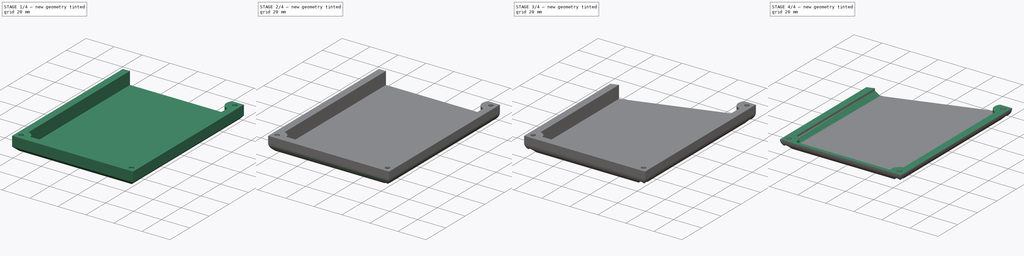
[diagram: build sequence overview — one tinted view per stage of 4, left to right]
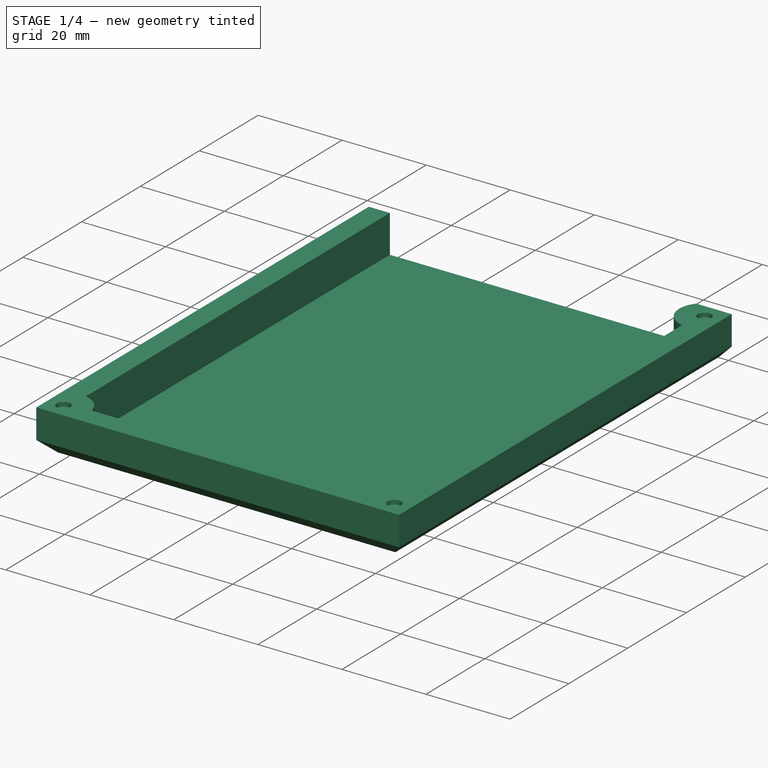
[diagram: stage 1 of 4 — iso view after this stage's code; geometry added in this stage tinted green]
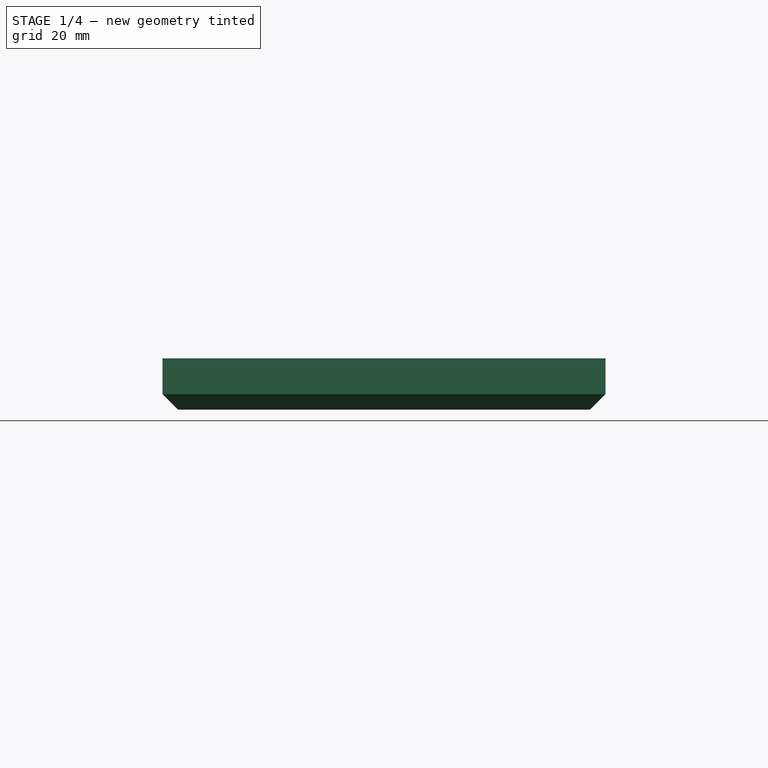
[diagram: stage 1 of 4 — front view after this stage's code; geometry added in this stage tinted green]
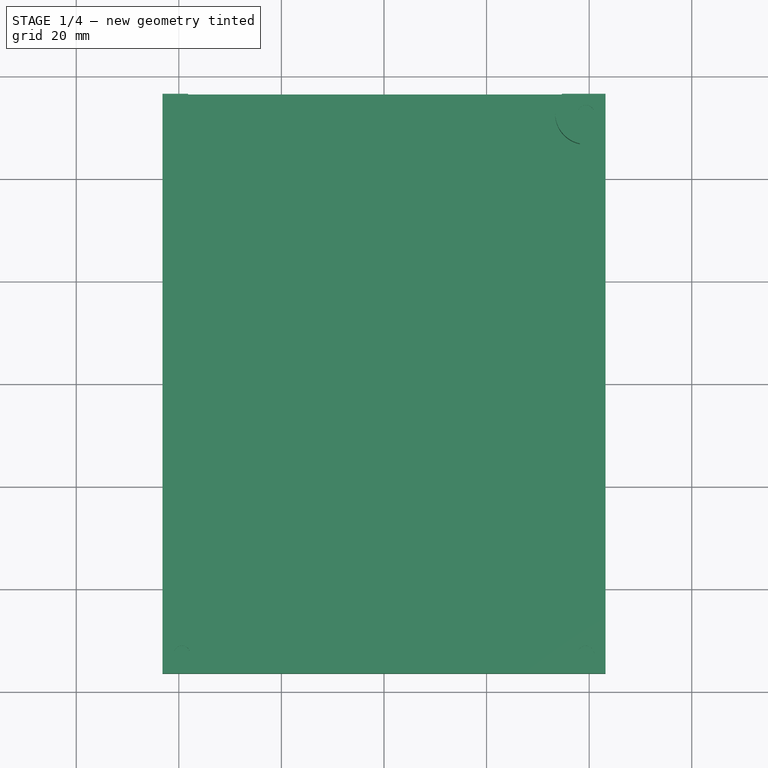
[diagram: stage 1 of 4 — top view after this stage's code; geometry added in this stage tinted green]
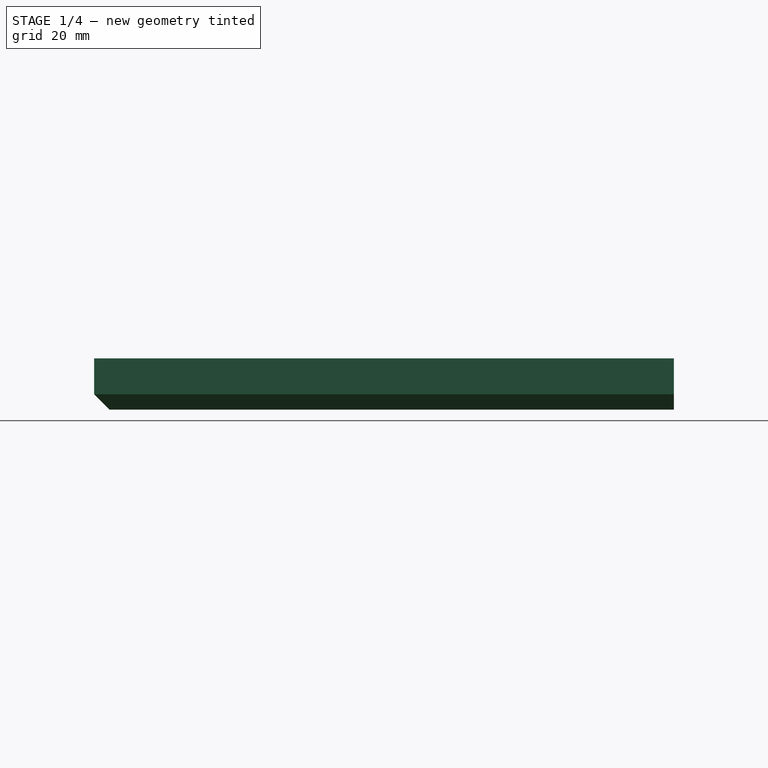
[diagram: stage 1 of 4 — right view after this stage's code; geometry added in this stage tinted green]
FCSTD DOCUMENT  (FreeCAD 0.18.4R)
Label: cover
License: All rights reserved
LicenseURL: http://en.wikipedia.org/wiki/All_rights_reserved
objects: PartDesign::Pocket×9, Sketcher::SketchObject×5, PartDesign::Chamfer×3, PartDesign::Pad×1, PartDesign::Fillet×1, PartDesign::Body×1
note: 30 computed .brp shape members not serialized (recipe doc carries the construction recipe); baked Part::Feature solids carry a one-line shape summary decoded from their .brp

FEATURE [Sketcher::SketchObject] Sketch
  MapMode = 5
  Support = -> [XY_Plane]
  sketch-geometry (4):
    g0: LineSegment StartX=-43.18 StartY=56.515 StartZ=0 EndX=43.18 EndY=56.515 EndZ=0
    g1: LineSegment StartX=43.18 StartY=56.515 StartZ=0 EndX=43.18 EndY=-56.515 EndZ=0
    g2: LineSegment StartX=43.18 StartY=-56.515 StartZ=0 EndX=-43.18 EndY=-56.515 EndZ=0
    g3: LineSegment StartX=-43.18 StartY=-56.515 StartZ=0 EndX=-43.18 EndY=56.515 EndZ=0
  constraints (10):
    c: Coincident(g0,g1)
    c: Coincident(g1,g2)
    c: Coincident(g2,g3)
    c: Coincident(g3,g0)
    c: Horizontal(g0)
    c: Vertical(g3)
    c: Symmetric(g1,g2,g-2)
    c: Symmetric(g1,g0,g-1)
    c: DistanceX(g2,g2) = 86.36
    c: DistanceY(g1,g1) = 113.03
FEATURE [PartDesign::Pad] Pad
  Length = 10
  Length2 = 100
  Profile = -> Sketch
  Type = 0
FEATURE [Sketcher::SketchObject] Sketch001
  MapMode = 5
  Placement = pos=(0,0,10) rot=(0,0,1;0rad)
  Support = -> [Pad]
  sketch-geometry (5):
    g0: Circle CenterX=-39.37 CenterY=-52.705 CenterZ=0 NormalX=0 NormalY=0 NormalZ=1 AngleXU=0 Radius=1.6
    g1: Circle CenterX=39.37 CenterY=-52.705 CenterZ=0 NormalX=0 NormalY=0 NormalZ=1 AngleXU=0 Radius=1.6
    g2: Circle CenterX=39.37 CenterY=52.705 CenterZ=0 NormalX=0 NormalY=0 NormalZ=1 AngleXU=0 Radius=1.6
    g3: LineSegment [constr] StartX=-39.37 StartY=-52.705 StartZ=0 EndX=39.37 EndY=-52.705 EndZ=0
    g4: LineSegment [constr] StartX=39.37 StartY=-52.705 StartZ=0 EndX=39.37 EndY=52.705 EndZ=0
  constraints (11):
    c: Equal(g2,g1)
    c: Equal(g1,g0)
    c: Radius(g2) = 1.6
    c: Coincident(g3,g0)
    c: Coincident(g3,g1)
    c: Coincident(g4,g1)
    c: Coincident(g4,g2)
    c: Symmetric(g1,g0,g-2)
    c: DistanceX(g3,g3) = 78.74
    c: Symmetric(g1,g2,g-1)
    c: DistanceY(g4,g4) = 105.41
FEATURE [PartDesign::Pocket] Pocket
  BaseFeature = -> Pad
  Length = 1
  Length2 = 100
  Profile = -> Sketch001
  Type = 0
FEATURE [Sketcher::SketchObject] Sketch002
  ExternalGeometry = -> [Pocket]
  MapMode = 5
  Placement = pos=(0,0,10) rot=(0,0,1;0rad)
  Support = -> [Pocket]
  sketch-geometry (7):
    g0: LineSegment StartX=-38.18 StartY=56.515 StartZ=0 EndX=34.7349 EndY=56.515 EndZ=0
    g1: LineSegment StartX=-38.18 StartY=-46.8242 StartZ=0 EndX=-38.18 EndY=56.515 EndZ=0
    g2: ArcOfCircle CenterX=-39.37 CenterY=-52.705 CenterZ=0 NormalX=0 NormalY=0 NormalZ=1 AngleXU=0 Radius=6 StartAngle=0.199657 EndAngle=1.37114
    g3: ArcOfCircle CenterX=39.37 CenterY=-52.705 CenterZ=0 NormalX=0 NormalY=0 NormalZ=1 AngleXU=0 Radius=6 StartAngle=1.77045 EndAngle=2.94194
    g4: ArcOfCircle CenterX=39.37 CenterY=52.705 CenterZ=0 NormalX=0 NormalY=0 NormalZ=1 AngleXU=0 Radius=6 StartAngle=2.45358 EndAngle=4.51273
    g5: LineSegment StartX=-33.4892 StartY=-51.515 StartZ=0 EndX=33.4892 EndY=-51.515 EndZ=0
    g6: LineSegment StartX=38.18 StartY=-46.8242 StartZ=0 EndX=38.18 EndY=46.8242 EndZ=0
  constraints (20):
    c: Coincident(g1,g0)
    c: Vertical(g1)
    c: PointOnObject(g0,g-3)
    c: Coincident(g2,g-6)
    c: Coincident(g3,g-5)
    c: Coincident(g4,g-4)
    c: Coincident(g4,g0)
    c: Equal(g4,g3)
    c: Coincident(g1,g2)
    c: Coincident(g5,g2)
    c: Coincident(g5,g3)
    c: Coincident(g6,g3)
    c: Coincident(g6,g4)
    c: Vertical(g6)
    c: DistanceX(g-3,g0) = 5
    c: DistanceY(g-7,g2) = 5
    c: Symmetric(g3,g2,g-2)
    c: Symmetric(g3,g1,g-2)
    c: Horizontal(g0)
    c: Radius(g3) = 6
FEATURE [PartDesign::Pocket] Pocket001
  BaseFeature = -> Pocket
  Length = 9
  Length2 = 100
  Profile = -> Sketch002
  Type = 0
FEATURE [PartDesign::Chamfer] Chamfer
  Base = -> Pocket001 [Edge9,Edge10,Edge11]
  BaseFeature = -> Pocket001
  Size = 3
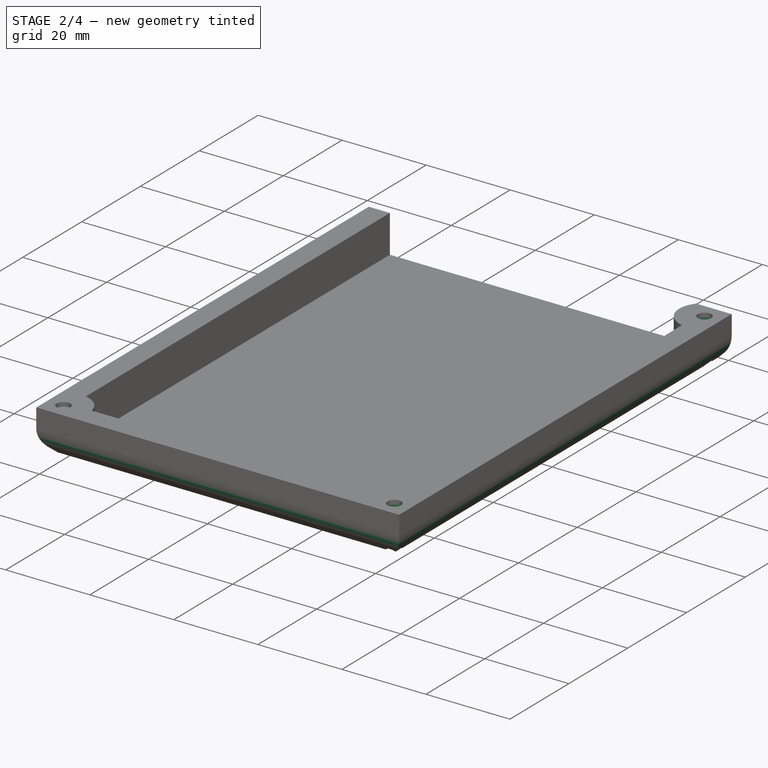
[diagram: stage 2 of 4 — iso view after this stage's code; geometry added in this stage tinted green]
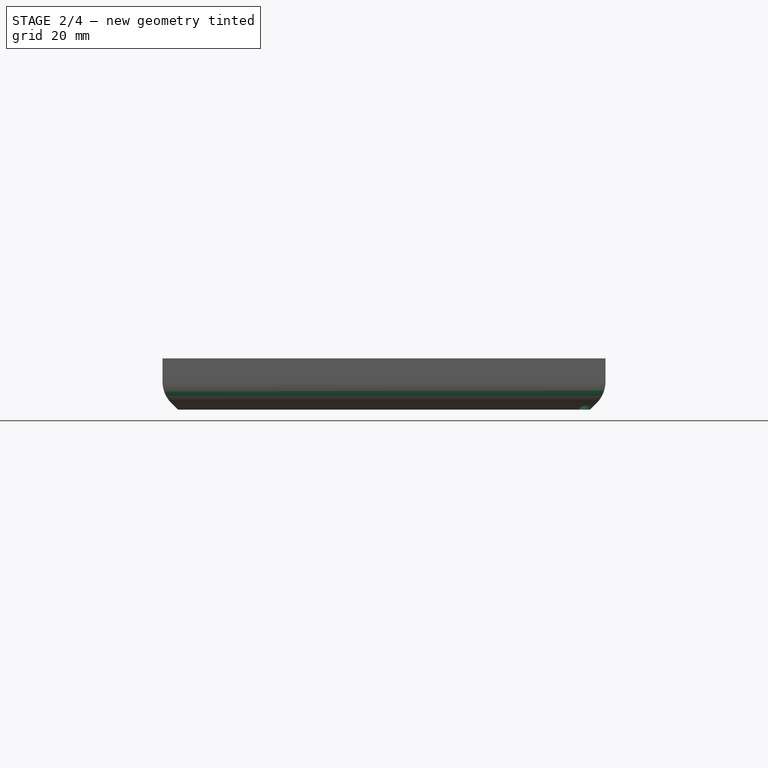
[diagram: stage 2 of 4 — front view after this stage's code; geometry added in this stage tinted green]
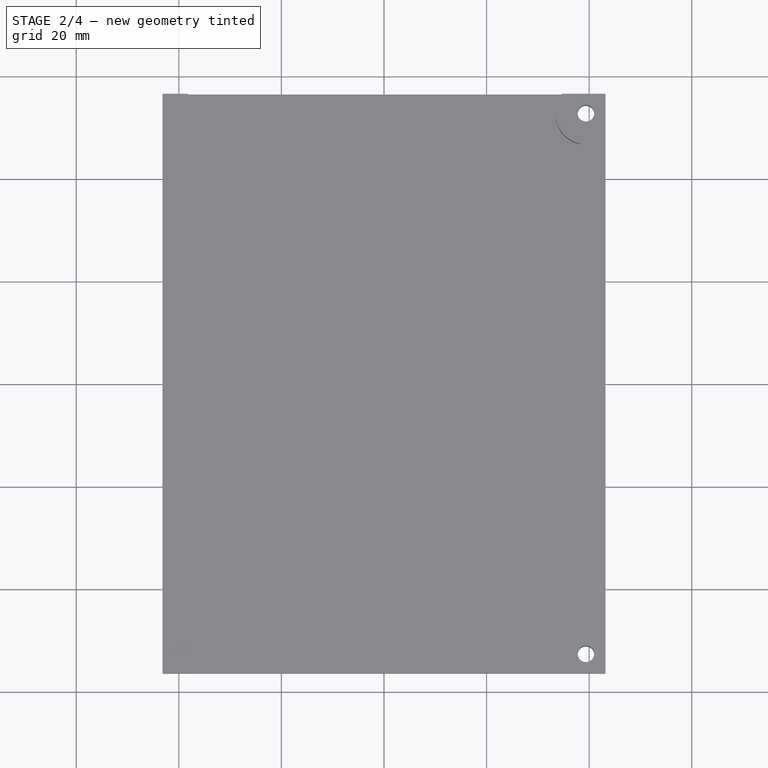
[diagram: stage 2 of 4 — top view after this stage's code; geometry added in this stage tinted green]
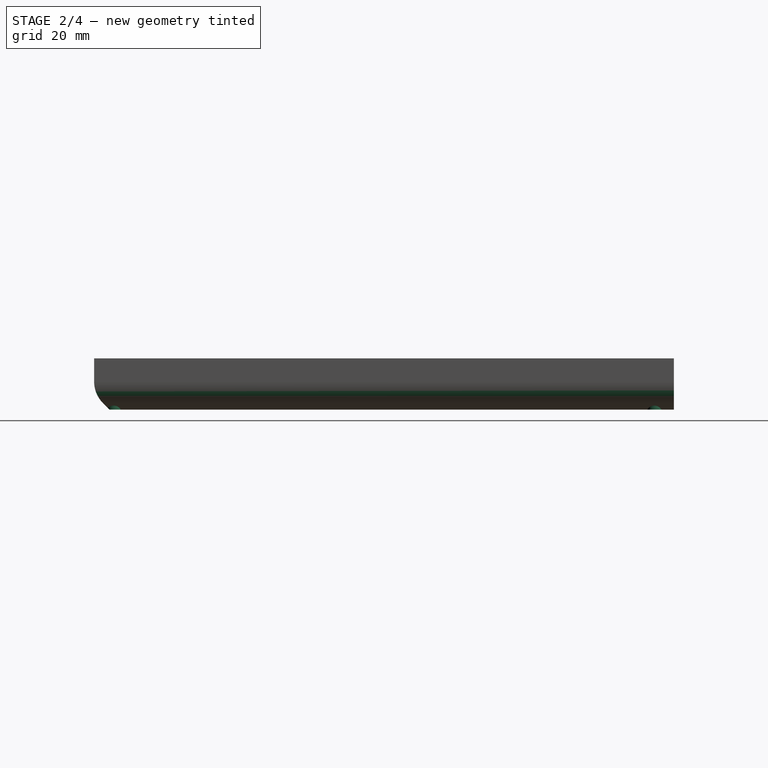
[diagram: stage 2 of 4 — right view after this stage's code; geometry added in this stage tinted green]
FEATURE [PartDesign::Fillet] Fillet
  Base = -> Chamfer [Edge16,Edge40,Edge15]
  BaseFeature = -> Chamfer
  Radius = 6
FEATURE [PartDesign::Pocket] Pocket002
  BaseFeature = -> Fillet
  Length = 5
  Length2 = 100
  Profile = -> Fillet [Face23]
  Type = 1
FEATURE [PartDesign::Pocket] Pocket003
  BaseFeature = -> Pocket002
  Length = 5
  Length2 = 100
  Profile = -> Pocket002 [Face25]
  Type = 1
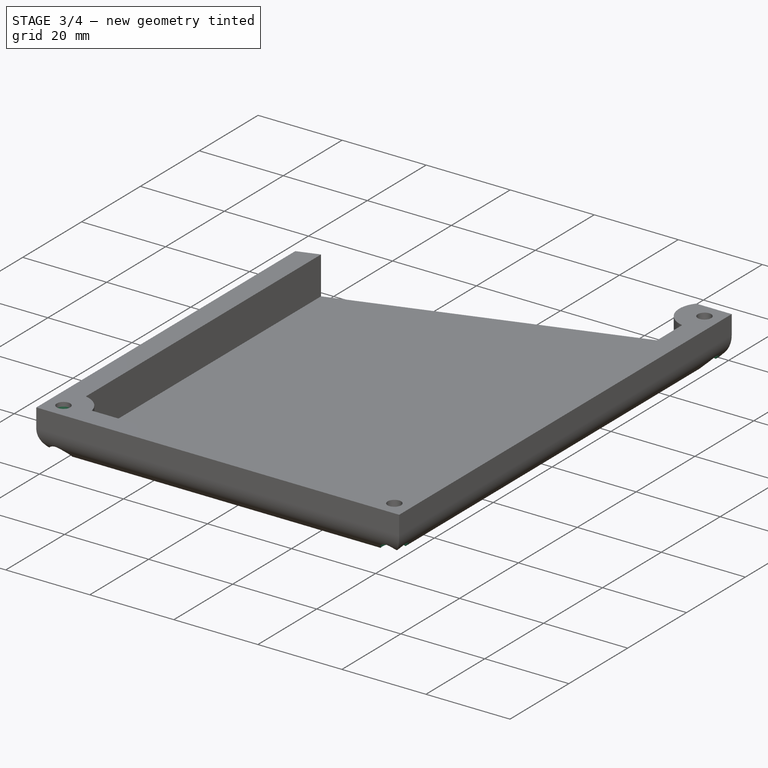
[diagram: stage 3 of 4 — iso view after this stage's code; geometry added in this stage tinted green]
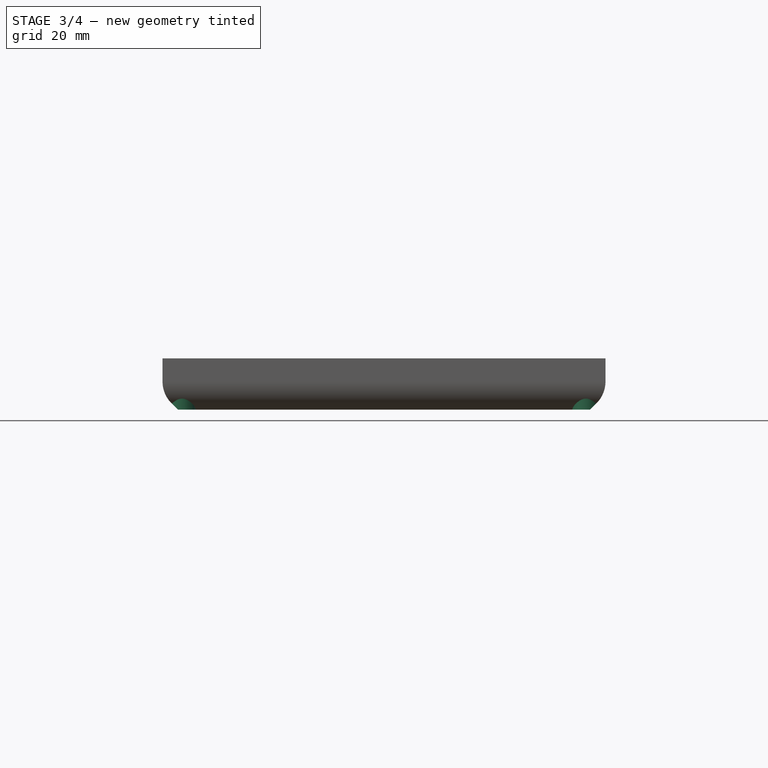
[diagram: stage 3 of 4 — front view after this stage's code; geometry added in this stage tinted green]
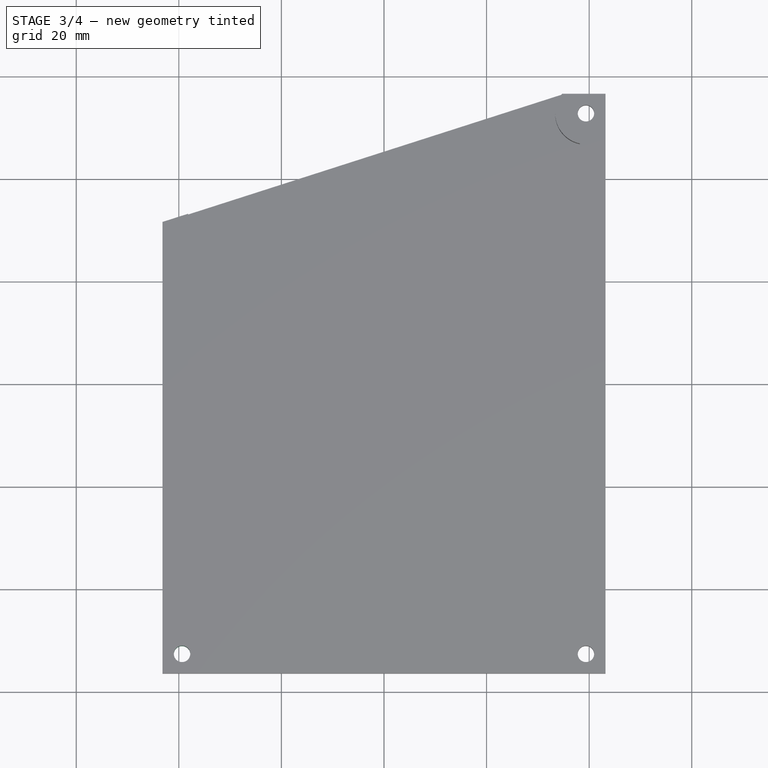
[diagram: stage 3 of 4 — top view after this stage's code; geometry added in this stage tinted green]
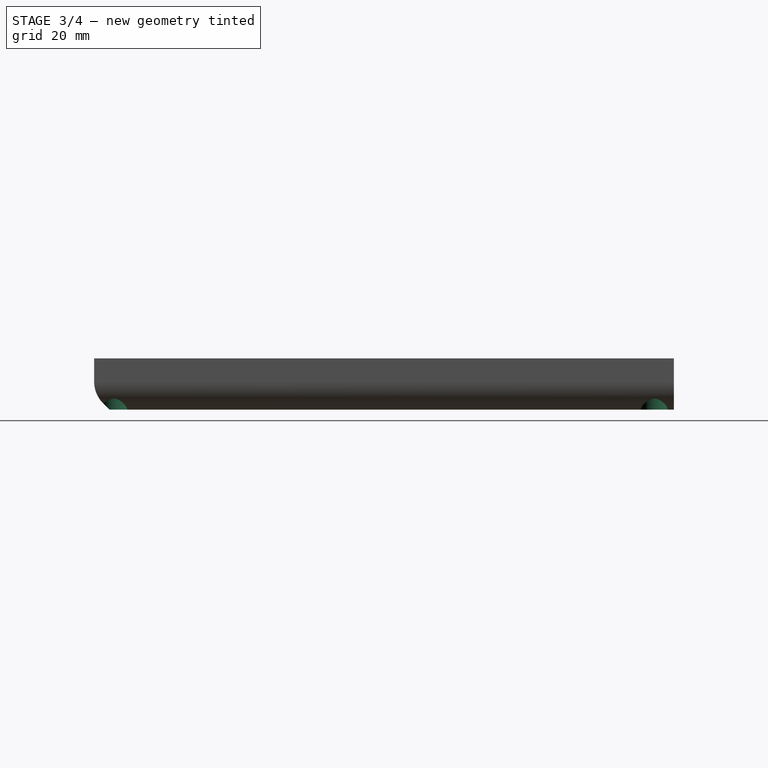
[diagram: stage 3 of 4 — right view after this stage's code; geometry added in this stage tinted green]
FEATURE [Sketcher::SketchObject] Sketch003
  MapMode = 5
  Placement = pos=(0,0,0) rot=(1,0,0;3.14159rad)
  sketch-geometry (3):
    g0: Circle CenterX=-39.37 CenterY=52.705 CenterZ=0 NormalX=0 NormalY=0 NormalZ=1 AngleXU=0 Radius=2.8
    g1: Circle CenterX=39.37 CenterY=52.705 CenterZ=0 NormalX=0 NormalY=0 NormalZ=1 AngleXU=0 Radius=2.8
    g2: Circle CenterX=39.37 CenterY=-52.705 CenterZ=0 NormalX=0 NormalY=0 NormalZ=1 AngleXU=0 Radius=2.8
  constraints (3):
    c: Equal(g2,g1)
    c: Equal(g1,g0)
    c: Radius(g1) = 2.8
FEATURE [PartDesign::Pocket] Pocket005
  BaseFeature = -> Pocket003
  Length = 4
  Length2 = 100
  Profile = -> Sketch003
  Type = 0
FEATURE [Sketcher::SketchObject] Sketch004
  ExternalGeometry = -> [Pocket005]
  MapMode = 5
  Placement = pos=(0,0,0) rot=(1,0,0;3.14159rad)
  Support = -> [Pocket005]
  sketch-geometry (5):
    g0: LineSegment StartX=34.7349 StartY=-56.515 StartZ=0 EndX=-43.18 EndY=-31.515 EndZ=0
    g1: LineSegment StartX=-43.18 StartY=-31.515 StartZ=0 EndX=-74.9579 EndY=-45.4531 EndZ=0
    g2: LineSegment StartX=-74.9579 StartY=-45.4531 StartZ=0 EndX=-56.1523 EndY=-90.8231 EndZ=0
    g3: LineSegment StartX=-56.1523 StartY=-90.8231 StartZ=0 EndX=38.8765 EndY=-98.3853 EndZ=0
    g4: LineSegment StartX=38.8765 StartY=-98.3853 StartZ=0 EndX=34.7349 EndY=-56.515 EndZ=0
  constraints (8):
    c: Coincident(g-3,g0)
    c: PointOnObject(g0,g-4)
    c: Coincident(g0,g1)
    c: Coincident(g1,g2)
    c: Coincident(g2,g3)
    c: Coincident(g3,g4)
    c: Coincident(g4,g0)
    c: DistanceY(g0,g0) = 25
FEATURE [PartDesign::Pocket] Pocket006
  BaseFeature = -> Pocket005
  Length = 5
  Length2 = 100
  Profile = -> Sketch004
  Type = 1
FEATURE [PartDesign::Pocket] Pocket007
  BaseFeature = -> Pocket006
  Length = 5
  Length2 = 100
  Profile = -> Pocket006 [Face37]
  Type = 1
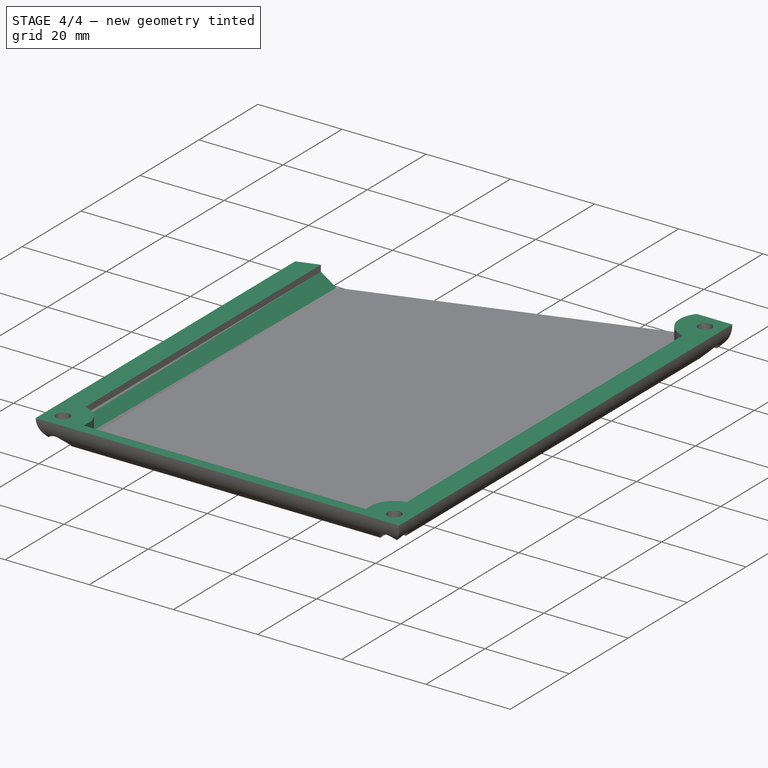
[diagram: stage 4 of 4 — iso view after this stage's code; geometry added in this stage tinted green]
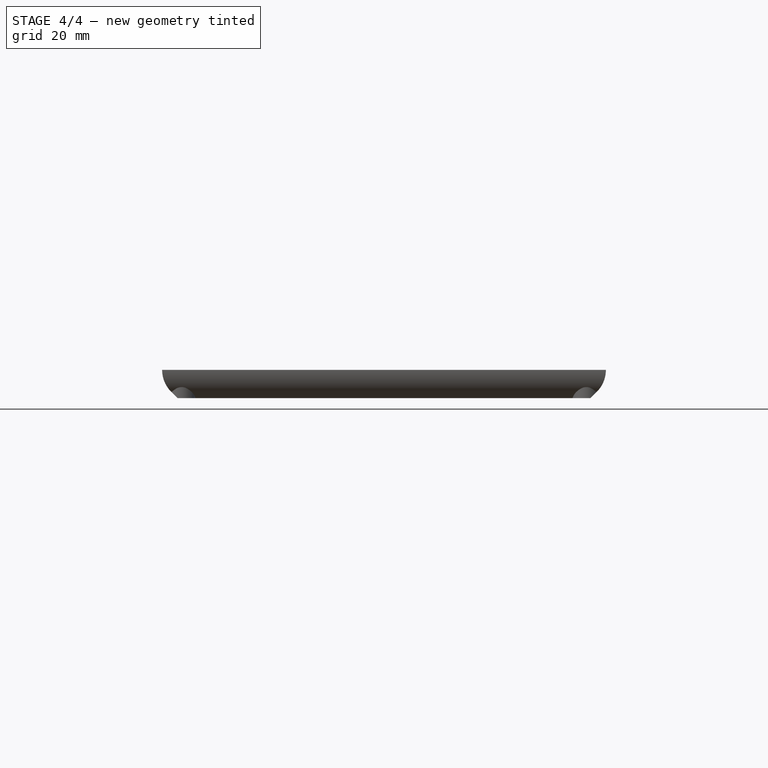
[diagram: stage 4 of 4 — front view after this stage's code; geometry added in this stage tinted green]
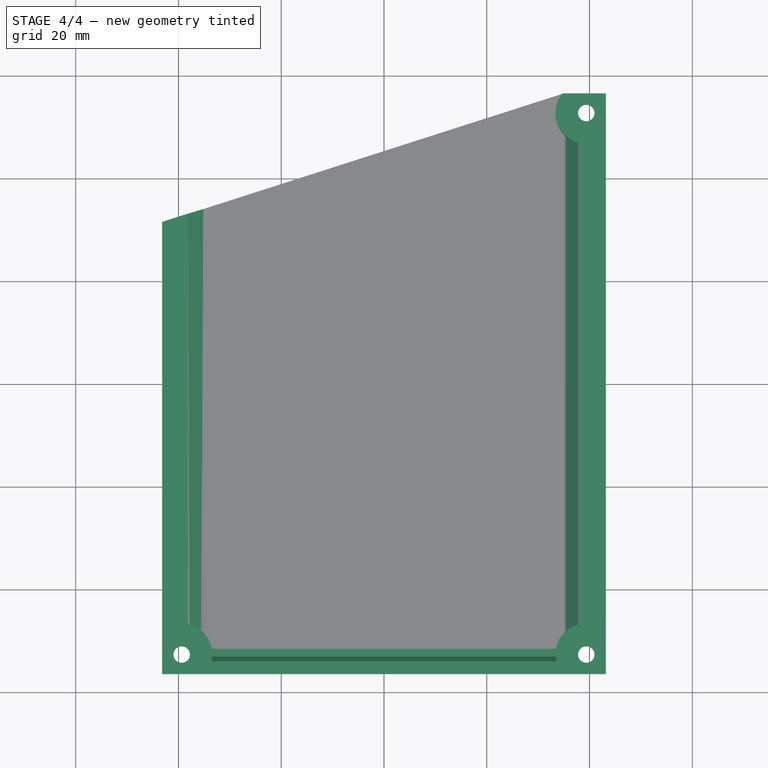
[diagram: stage 4 of 4 — top view after this stage's code; geometry added in this stage tinted green]
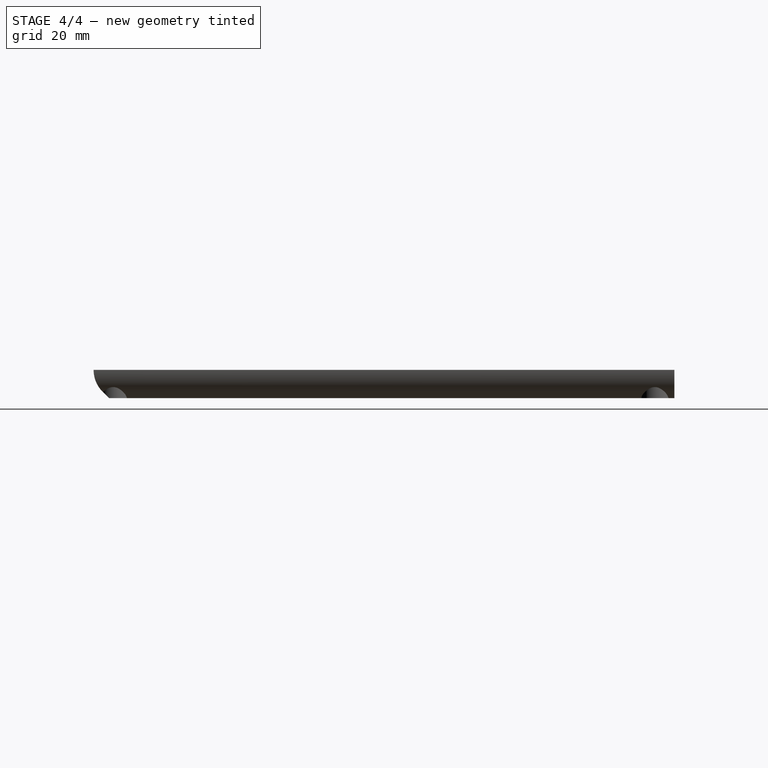
[diagram: stage 4 of 4 — right view after this stage's code; geometry added in this stage tinted green]
FEATURE [PartDesign::Pocket] Pocket008
  BaseFeature = -> Pocket007
  Length = 4.5
  Length2 = 100
  Profile = -> Pocket007 [Face6]
  Type = 0
FEATURE [PartDesign::Chamfer] Chamfer001
  Base = -> Pocket008 [Edge82,Edge74]
  BaseFeature = -> Pocket008
  Size = 3
FEATURE [PartDesign::Pocket] Pocket009
  BaseFeature = -> Chamfer001
  Length = 2.5
  Length2 = 100
  Profile = -> Chamfer001 [Face10]
  Type = 0
FEATURE [PartDesign::Chamfer] Chamfer002
  Base = -> Pocket009 [Edge40]
  BaseFeature = -> Pocket009
  Size = 1
FEATURE [PartDesign::Body] Body
  Group = -> [Sketch,Pad,Sketch001,Pocket,Sketch002,Pocket001,Chamfer,Fillet,Pocket002,Pocket003,Sketch003,Pocket005,Sketch004,Pocket006,Pocket007,Pocket008,Chamfer001,Pocket009,Chamfer002]
  Origin = -> Origin
  Tip = -> Chamfer002
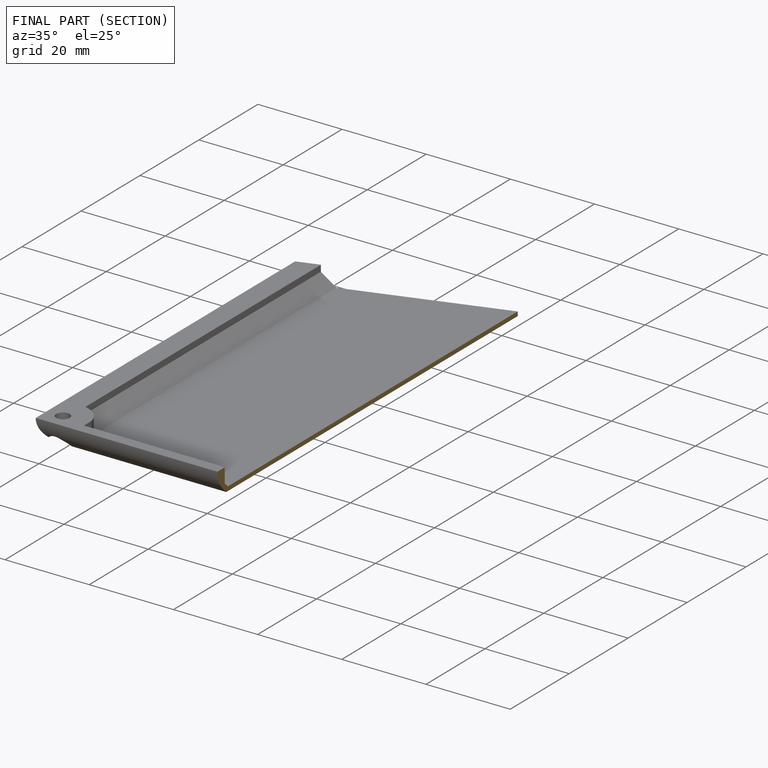
[diagram: finished part — half-section view (interior)]
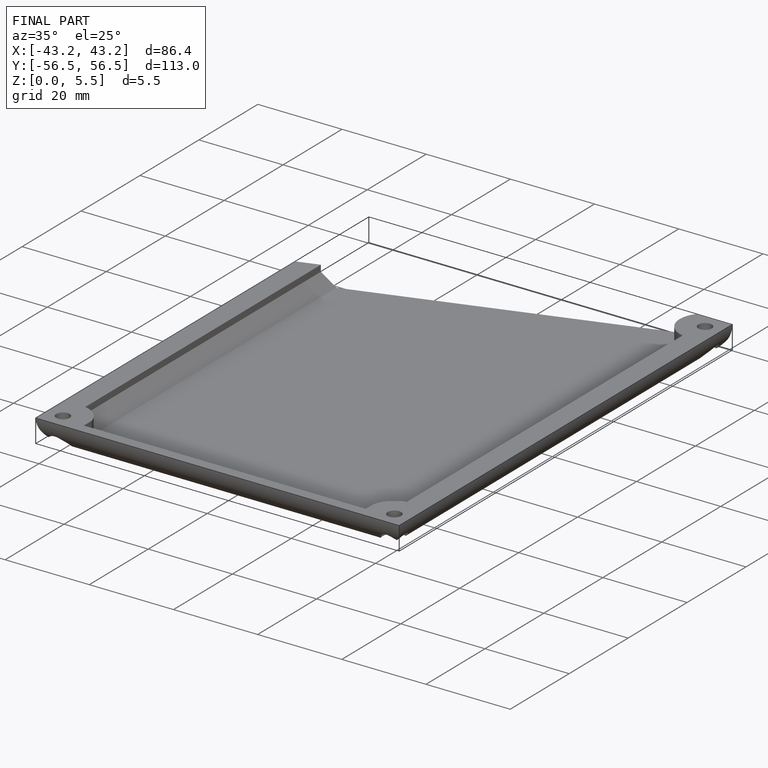
[diagram: finished part — iso view with bounding-box wireframe]
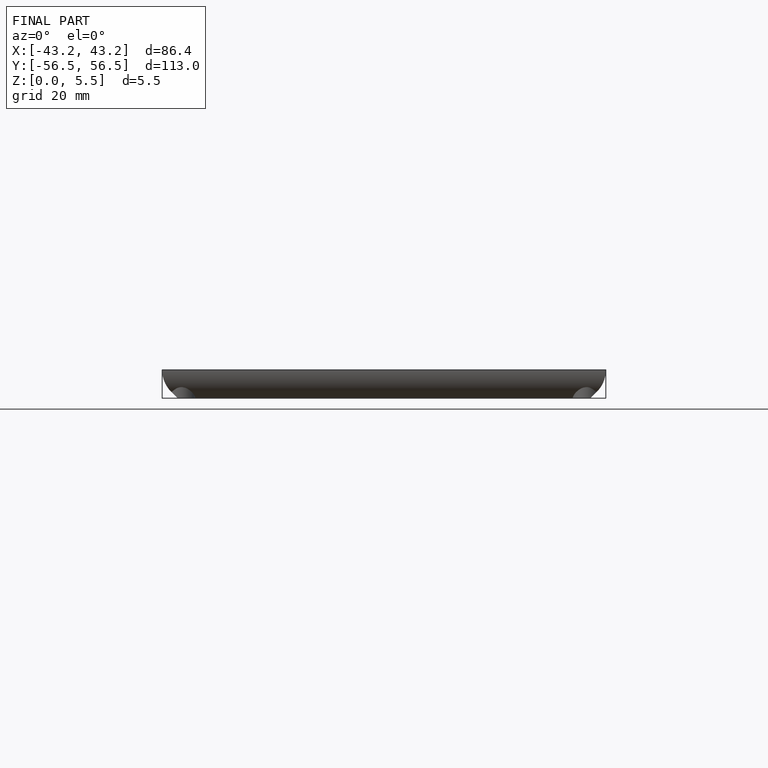
[diagram: finished part — front view with bounding-box wireframe]
